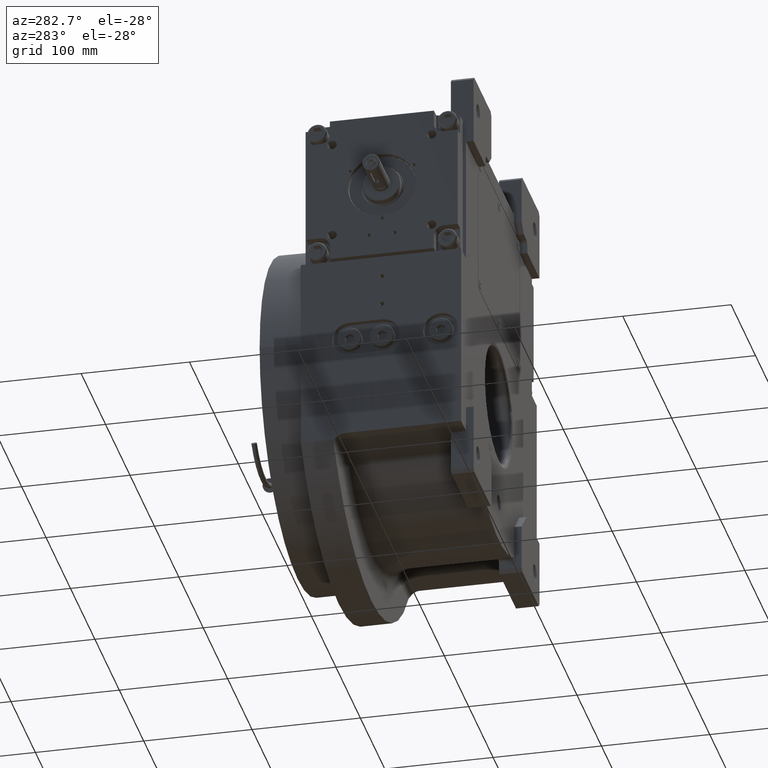
[diagram: clean part render]
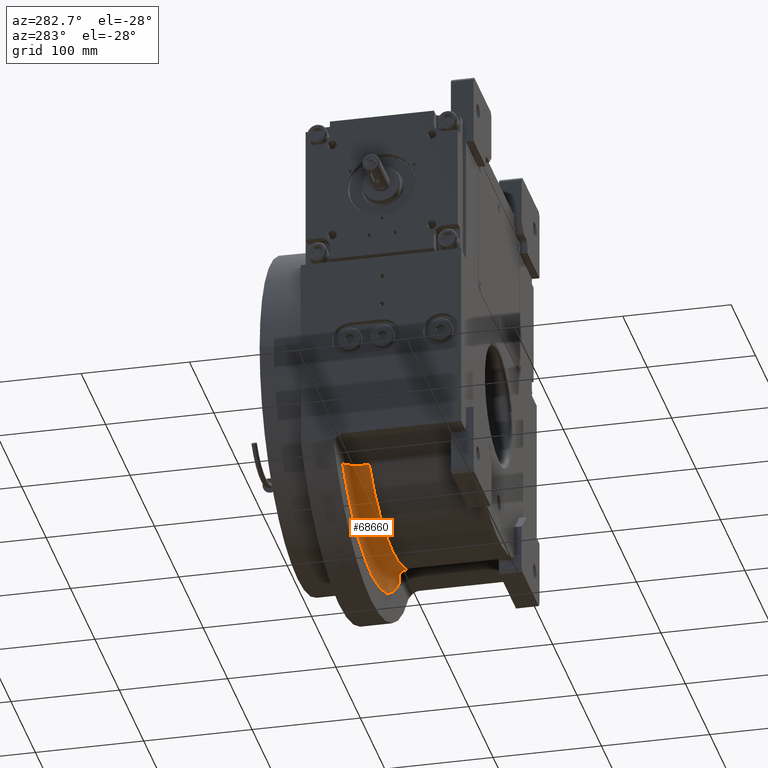
[diagram: same view with one face highlighted and labeled with its STEP entity id]
A machine part, auxiliary view. The second image highlights one B-rep face of the part: STEP entity #68660.
In plain terms, the highlighted toroidal blend (fillet) surface has major radius 158 mm and minor (blend) radius 20 mm.
Its self-contained STEP definition (entity closure, byte-faithful):
#288 = CARTESIAN_POINT ( 'NONE',  ( -111.3923422199803639, 44.22351198310433773, -104.1132547796615171 ) ) ;
#2426 = CARTESIAN_POINT ( 'NONE',  ( -97.69402759877473841, 32.17824278475688260, -99.34394788754170236 ) ) ;
#2771 = CARTESIAN_POINT ( 'NONE',  ( 102.3983983773695172, 39.13454416598305130, -101.0305906898127120 ) ) ;
#2781 = CARTESIAN_POINT ( 'NONE',  ( -97.91255337353909738, 32.70133367099210631, -99.42366482389860494 ) ) ;
#3117 = CARTESIAN_POINT ( 'NONE',  ( -102.7000760039274923, 39.41809226182505910, -101.1376651757015992 ) ) ;
#3453 = CARTESIAN_POINT ( 'NONE',  ( 97.74688043386996128, 32.31025036503177006, -99.36423024539772086 ) ) ;
#3813 = CARTESIAN_POINT ( 'NONE',  ( -97.38739292718010176, 31.36510134331906130, -99.23164404730367494 ) ) ;
#4142 = CARTESIAN_POINT ( 'NONE',  ( 96.30723760260589472, 24.99999990761120117, -98.83797943607669367 ) ) ;
#5174 = CARTESIAN_POINT ( 'NONE',  ( 109.4247943805015808, 43.57593919126923510, -103.4542186149024303 ) ) ;
#5185 = CARTESIAN_POINT ( 'NONE',  ( -113.1631049617858622, 44.62956057005464316, -104.6995521603640498 ) ) ;
#6148 = VERTEX_POINT ( 'NONE', #14197 ) ;
#6250 = CARTESIAN_POINT ( 'NONE',  ( 101.7963591369399978, 45.00000000000000000, -121.4958819722340024 ) ) ;
#8032 = CARTESIAN_POINT ( 'NONE',  ( 98.48471084682699939, 33.97079976953421721, -99.63148764706355109 ) ) ;
#8395 = CARTESIAN_POINT ( 'NONE',  ( 102.7499884497114238, 39.46404896067710411, -101.1546350695295473 ) ) ;
#8406 = CARTESIAN_POINT ( 'NONE',  ( -99.18958940278133696, 35.23783606590234285, -99.88545211301371296 ) ) ;
#8739 = CARTESIAN_POINT ( 'NONE',  ( 97.97117223922006701, 32.83484338586081464, -99.44526033932362452 ) ) ;
#9075 = CARTESIAN_POINT ( 'NONE',  ( 97.90664548853494864, 32.68827471051651656, -99.42190602882016037 ) ) ;
#9086 = CARTESIAN_POINT ( 'NONE',  ( -97.79214034478044937, 32.42049839196046435, -99.37979107747185026 ) ) ;
#9439 = CARTESIAN_POINT ( 'NONE',  ( -116.7646410946360049, 44.99998530194281443, -105.8709790865936355 ) ) ;
#10132 = CARTESIAN_POINT ( 'NONE',  ( -2.057655180072804513E-28, 25.00000000000000000, 0.000000000000000000 ) ) ;
#10460 = CARTESIAN_POINT ( 'NONE',  ( 111.1261820987919577, 44.16061954937864442, -104.0245863794300476 ) ) ;
#10469 = CARTESIAN_POINT ( 'NONE',  ( -109.4371449076648020, 43.58039139906387760, -103.4586012990809252 ) ) ;
#10829 = CARTESIAN_POINT ( 'NONE',  ( 107.9131611571321798, 42.93445073039974602, -102.9430406042122996 ) ) ;
#10837 = CARTESIAN_POINT ( 'NONE',  ( -114.9267522836661755, 44.89477428892062960, -105.2774722197928270 ) ) ;
#11589 = ORIENTED_EDGE ( 'NONE', *, *, #48377, .T. ) ;
#13675 = CARTESIAN_POINT ( 'NONE',  ( 98.03505203622908937, 32.97731647600386395, -99.46841138892769152 ) ) ;
#14035 = CARTESIAN_POINT ( 'NONE',  ( 97.48234618482011626, 31.63550269026396577, -99.26904948111314297 ) ) ;
#14197 = CARTESIAN_POINT ( 'NONE',  ( -96.30722393658518854, 24.99999992571344976, -98.83796549704690904 ) ) ;
#14712 = CARTESIAN_POINT ( 'NONE',  ( 102.7545780126843340, 39.46825219890278191, -101.1562525515439432 ) ) ;
#15407 = CARTESIAN_POINT ( 'NONE',  ( -103.5604638868912701, 40.20595371232317206, -101.4407642183008420 ) ) ;
#15410 = CARTESIAN_POINT ( 'NONE',  ( -4.611055492802900184E-05, 45.00000000000000000, -158.5100177325210211 ) ) ;
#15752 = CARTESIAN_POINT ( 'NONE',  ( -108.8488826586078488, 43.34740058216166858, -103.2598516227548657 ) ) ;
#16103 = CARTESIAN_POINT ( 'NONE',  ( -109.4752336681219163, 43.59488064486146897, -103.4714376798484778 ) ) ;
#18937 = CARTESIAN_POINT ( 'NONE',  ( 97.67883289305895289, 32.14176207053703394, -99.33972559280917380 ) ) ;
#18946 = CARTESIAN_POINT ( 'NONE',  ( -102.6416497146342408, 39.36405972610243964, -101.1170677917055087 ) ) ;
#19280 = CARTESIAN_POINT ( 'NONE',  ( 100.2350872385880791, 36.71107100005902879, -100.2633408774202195 ) ) ;
#19628 = CARTESIAN_POINT ( 'NONE',  ( 96.42904774952934588, 27.58533141082950735, -98.88715296331103843 ) ) ;
#19638 = CARTESIAN_POINT ( 'NONE',  ( -101.7297215537501955, 38.46499574230020357, -100.7942339710923818 ) ) ;
#19968 = CARTESIAN_POINT ( 'NONE',  ( 97.85275650508563672, 32.56236914450305875, -99.40243881657917768 ) ) ;
#20658 = CARTESIAN_POINT ( 'NONE',  ( -109.9185748977876074, 43.76307598258188847, -103.6208235213127153 ) ) ;
#21001 = CARTESIAN_POINT ( 'NONE',  ( 107.5527563214296549, 42.75924596825704072, -102.8205401285183029 ) ) ;
#21010 = CARTESIAN_POINT ( 'NONE',  ( -109.4712663826515495, 43.59337483259150048, -103.4701008455638771 ) ) ;
#21692 = CARTESIAN_POINT ( 'NONE',  ( 110.3220350555751281, 43.91652627139864506, -103.7565656085486836 ) ) ;
#22067 = CARTESIAN_POINT ( 'NONE',  ( -43.59914018231270205, 45.00000000000000000, -152.4009961974019802 ) ) ;
#23406 = CARTESIAN_POINT ( 'NONE',  ( -1.421085471520200056E-14, 25.00000000000330047, 8.526512829121199706E-14 ) ) ;
#23857 = CARTESIAN_POINT ( 'NONE',  ( -101.4886153696198647, 38.20591153641694859, -100.7084430121944365 ) ) ;
#24198 = CARTESIAN_POINT ( 'NONE',  ( 102.5048850568784786, 39.23635417113926138, -101.0681975133973225 ) ) ;
#24207 = CARTESIAN_POINT ( 'NONE',  ( -100.7926875676756566, 37.41839457156896742, -100.4603088552798908 ) ) ;
#24893 = CARTESIAN_POINT ( 'NONE',  ( -98.54806655395772452, 34.10925224219861462, -99.65458556124448819 ) ) ;
#25233 = CARTESIAN_POINT ( 'NONE',  ( 98.02735946511637621, 32.96029053751003346, -99.46562191245601525 ) ) ;
#25580 = CARTESIAN_POINT ( 'NONE',  ( -109.4570425004065584, 43.58796948114684966, -103.4653075323048057 ) ) ;
#25918 = CARTESIAN_POINT ( 'NONE',  ( -113.2388050366955667, 44.64354608652779177, -104.7244472051020097 ) ) ;
#26265 = CARTESIAN_POINT ( 'NONE',  ( -106.1807118417980007, 42.01955951595629557, -102.3474989434262028 ) ) ;
#26624 = CARTESIAN_POINT ( 'NONE',  ( -108.5878809751568355, 43.23598813457415702, -103.1712700995225731 ) ) ;
#26970 = DIRECTION ( 'NONE',  ( -0.7986875995212583401, 0.000000000000000000, -0.6017458918604845497 ) ) ;
#28881 = B_SPLINE_CURVE_WITH_KNOTS ( 'NONE', 3,
 ( #40019, #51266, #30504, #40703, #29464, #3813, #50920, #2426, #9086, #2781, #55868, #29822, #62162, #34395, #61819, #24893, #8406, #46330, #24207, #23857, #19638, #45625, #56569, #62511, #18946, #3117, #35770, #57255, #68109, #63880, #15407, #43132, #26265, #31183, #36796, #68447, #26624, #15752, #63543, #37146, #58619, #10469, #25580, #42429, #21010, #16103, #20658, #36464, #288, #31867, #37503, #53350, #52986, #42093, #69145, #5185, #58273, #47716, #25918, #48062, #10837, #30846, #9439, #63369 ),
 .UNSPECIFIED., .F., .F.,
 ( 4, 2, 2, 2, 1, 1, 1, 1, 2, 2, 2, 2, 2, 1, 1, 1, 1, 1, 2, 2, 2, 2, 2, 1, 1, 1, 1, 1, 1, 2, 2, 2, 2, 2, 1, 1, 1, 2, 2, 2, 4 ),
 ( 0.000000000000000000, 0.1250000000000111300, 0.1875000000000168754, 0.2187500000000195677, 0.2343750000000205391, 0.2421875000000207612, 0.2460937500000210110, 0.2480468750000210110, 0.2490234375000210942, 0.2500000000000211497, 0.3750000000000347500, 0.4375000000000414113, 0.4687500000000452416, 0.4843750000000466294, 0.4921875000000472955, 0.4960937500000481282, 0.4980468750000489053, 0.4990234375000496825, 0.4995117187500495715, 0.5000000000000494049, 0.6250000000001078027, 0.6875000000001370015, 0.7187500000001518785, 0.7343750000001594280, 0.7421875000001629807, 0.7460937500001643130, 0.7480468750001647571, 0.7490234375001647571, 0.7495117187501649791, 0.7497558593751655343, 0.7500000000001662004, 0.8125000000001361133, 0.8437500000001215694, 0.8593750000001149081, 0.8671875000001115774, 0.8710937500001101341, 0.8730468750001093570, 0.8740234375001090239, 0.8750000000001086908, 0.9375000000000544009, 1.000000000000000000 ),
 .UNSPECIFIED. ) ;
#29464 = CARTESIAN_POINT ( 'NONE',  ( -97.06297459206342637, 30.37875981429069938, -99.11244784926033446 ) ) ;
#29815 = CARTESIAN_POINT ( 'NONE',  ( 102.7579227797914854, 39.47131357591320011, -101.1574313033593882 ) ) ;
#29822 = CARTESIAN_POINT ( 'NONE',  ( -98.00546406152352574, 32.91113758827333413, -99.45746077517848960 ) ) ;
#30504 = CARTESIAN_POINT ( 'NONE',  ( -96.45153004134235175, 27.70310141048831198, -98.88764133614009211 ) ) ;
#30672 = CIRCLE ( 'NONE', #35202, 138.0000000000000853 ) ;
#30846 = CARTESIAN_POINT ( 'NONE',  ( -116.2352257174750463, 44.99001509439585789, -105.7012472922178006 ) ) ;
#31174 = CARTESIAN_POINT ( 'NONE',  ( 112.6337903164633758, 44.53780329086850287, -104.5239396644698502 ) ) ;
#31183 = CARTESIAN_POINT ( 'NONE',  ( -106.7795100371588859, 42.36370184623466884, -102.5536834389168064 ) ) ;
#31858 = CARTESIAN_POINT ( 'NONE',  ( 115.2789584378532908, 44.95770843063282030, -105.3909224794406327 ) ) ;
#31867 = CARTESIAN_POINT ( 'NONE',  ( -111.7301272109056498, 44.31438120929762192, -104.2256781774488275 ) ) ;
#32249 = TOROIDAL_SURFACE ( 'NONE', #38985, 158.0000000000000000, 20.00000000000000000 ) ;
#32588 = CARTESIAN_POINT ( 'NONE',  ( -101.7965497933509909, 45.00000000000000000, -121.4959109195396110 ) ) ;
#33994 = EDGE_CURVE ( 'NONE', #6148, #47500, #30672, .T. ) ;
#34395 = CARTESIAN_POINT ( 'NONE',  ( -98.02791288108049628, 32.96098501412838999, -99.46561891031363700 ) ) ;
#35073 = CARTESIAN_POINT ( 'NONE',  ( 102.0508725851416756, 38.79353669661188064, -100.9077352945622579 ) ) ;
#35202 = AXIS2_PLACEMENT_3D ( 'NONE', #23406, #44824, #39552 ) ;
#35427 = CARTESIAN_POINT ( 'NONE',  ( 101.3949774993228203, 38.10441288670152460, -100.6755621131664640 ) ) ;
#35763 = CARTESIAN_POINT ( 'NONE',  ( 98.00384888286747298, 32.90804153405046151, -99.45709908681564571 ) ) ;
#35770 = CARTESIAN_POINT ( 'NONE',  ( -102.7293842753246480, 39.44505987403460523, -101.1479936078508217 ) ) ;
#36099 = CARTESIAN_POINT ( 'NONE',  ( 103.3977546460237562, 40.05675034197459183, -101.3829155952155929 ) ) ;
#36454 = CARTESIAN_POINT ( 'NONE',  ( 116.3458202215898751, 45.00009952038519856, -105.7365312948304279 ) ) ;
#36464 = CARTESIAN_POINT ( 'NONE',  ( -110.4507057160706438, 43.94872069333644049, -103.7991858523617452 ) ) ;
#36796 = CARTESIAN_POINT ( 'NONE',  ( -107.7423295384170245, 42.85102449398583957, -102.8832939820001116 ) ) ;
#37146 = CARTESIAN_POINT ( 'NONE',  ( -109.3181507463841768, 43.53466286722584755, -103.4184730461046655 ) ) ;
#37150 = CARTESIAN_POINT ( 'NONE',  ( -21.98885812455705135, 45.00000000000000000, -156.9786534940434990 ) ) ;
#37503 = CARTESIAN_POINT ( 'NONE',  ( -112.2734746109593260, 44.44468254698182363, -104.4058678920740988 ) ) ;
#37507 = CARTESIAN_POINT ( 'NONE',  ( 64.41571053208309650, 45.00000000000000000, -144.8384350625149750 ) ) ;
#37857 = CARTESIAN_POINT ( 'NONE',  ( 43.59869364544065462, 45.00000000000000000, -152.4011103777230005 ) ) ;
#38985 = AXIS2_PLACEMENT_3D ( 'NONE', #10132, #43488, #26970 ) ;
#39552 = DIRECTION ( 'NONE',  ( -0.6978784504689377055, -1.201735973212917754E-14, -0.7162162162162165613 ) ) ;
#40019 = CARTESIAN_POINT ( 'NONE',  ( -96.30722393658518854, 24.99999992571344976, -98.83796549704690904 ) ) ;
#40703 = CARTESIAN_POINT ( 'NONE',  ( -96.88299641673512497, 29.71310565171039997, -99.04611361363333799 ) ) ;
#41386 = CARTESIAN_POINT ( 'NONE',  ( 102.7270658436678303, 39.44302597977765146, -101.1465560309166420 ) ) ;
#41720 = CARTESIAN_POINT ( 'NONE',  ( 97.36157097504504065, 31.29695299417163667, -99.22571455668132501 ) ) ;
#42093 = CARTESIAN_POINT ( 'NONE',  ( -112.8981352970310326, 44.57872936801063446, -104.6123043516303426 ) ) ;
#42097 = CARTESIAN_POINT ( 'NONE',  ( 21.98865651185845138, 45.00000000000000000, -156.9786712556644943 ) ) ;
#42306 = EDGE_CURVE ( 'NONE', #6148, #57552, #28881, .T. ) ;
#42429 = CARTESIAN_POINT ( 'NONE',  ( -109.4655760309758534, 43.59121322662022635, -103.4681832982696505 ) ) ;
#42433 = CARTESIAN_POINT ( 'NONE',  ( 83.96432363714549751, 45.00000000000000000, -134.4519182908271944 ) ) ;
#42781 = CARTESIAN_POINT ( 'NONE',  ( 117.1665481270144085, 45.00000000000000000, -106.0000000000000000 ) ) ;
#43132 = CARTESIAN_POINT ( 'NONE',  ( -104.5087876018555448, 40.95577502017587790, -101.7701399989986726 ) ) ;
#43136 = CARTESIAN_POINT ( 'NONE',  ( -112.2729284226672064, 45.00000000000000000, -111.4014722087630105 ) ) ;
#43487 = CARTESIAN_POINT ( 'NONE',  ( 112.2734842588863842, 45.00000000000000000, -111.4014792453958052 ) ) ;
#43488 = DIRECTION ( 'NONE',  ( 0.000000000000000000, -1.000000000000000000, 0.000000000000000000 ) ) ;
#44824 = DIRECTION ( 'NONE',  ( -6.789570679155330615E-15, -1.000000000000000000, 2.340198913247644897E-14 ) ) ;
#45625 = CARTESIAN_POINT ( 'NONE',  ( -102.1052124814145685, 38.84748452432424415, -100.9274324292788094 ) ) ;
#45966 = CARTESIAN_POINT ( 'NONE',  ( 104.2463131879213307, 40.76393802617366191, -101.6826970027681085 ) ) ;
#46321 = CARTESIAN_POINT ( 'NONE',  ( 101.6495231024777866, 38.38138673485482855, -100.7657376625949581 ) ) ;
#46330 = CARTESIAN_POINT ( 'NONE',  ( -100.3652794098986902, 36.87972709017024897, -100.3072398612967220 ) ) ;
#46678 = CARTESIAN_POINT ( 'NONE',  ( 100.6690459606547705, 37.27067431726949565, -100.4179235864729520 ) ) ;
#47164 = EDGE_CURVE ( 'NONE', #47500, #56610, #51978, .T. ) ;
#47351 = CARTESIAN_POINT ( 'NONE',  ( 108.7699844828208597, 43.31492083898538681, -103.2332460237712013 ) ) ;
#47500 = VERTEX_POINT ( 'NONE', #62764 ) ;
#47716 = CARTESIAN_POINT ( 'NONE',  ( -113.2270883732561799, 44.64139532762662554, -104.7205948346391580 ) ) ;
#48031 = CARTESIAN_POINT ( 'NONE',  ( 117.1665481270144085, 45.00000000000000000, -106.0000000000000000 ) ) ;
#48062 = CARTESIAN_POINT ( 'NONE',  ( -114.1474023438828596, 44.80939919492819001, -105.0231329103317108 ) ) ;
#48065 = CARTESIAN_POINT ( 'NONE',  ( -117.1660380023439956, 45.00001431931600138, -105.9999239592122109 ) ) ;
#48377 = EDGE_CURVE ( 'NONE', #57552, #56610, #48482, .T. ) ;
#48482 = B_SPLINE_CURVE_WITH_KNOTS ( 'NONE', 3,
 ( #48065, #43136, #32588, #59690, #57927, #22067, #37150, #15410, #42097, #37857, #37507, #42433, #6250, #43487, #42781 ),
 .UNSPECIFIED., .F., .F.,
 ( 4, 1, 1, 1, 1, 1, 1, 1, 1, 1, 1, 1, 4 ),
 ( 0.000000000000000000, 0.08230548578115680358, 0.1657096187028465062, 0.2495666647837894991, 0.3333347921405555025, 0.4167731287220570180, 0.4999985279742490407, 0.5832235921521119471, 0.6666606947103590475, 0.7504274457011980148, 0.8342845243559869894, 0.9176906032219021014, 1.000000000000000000 ),
 .UNSPECIFIED. ) ;
#48768 = CARTESIAN_POINT ( 'NONE',  ( 117.1665481270144085, 45.00000000000000000, -106.0000000000000000 ) ) ;
#49625 = ORIENTED_EDGE ( 'NONE', *, *, #33994, .F. ) ;
#50908 = CARTESIAN_POINT ( 'NONE',  ( 99.07132607232249200, 35.05063944442410673, -99.84668655224699307 ) ) ;
#50920 = CARTESIAN_POINT ( 'NONE',  ( -97.50460443159397528, 31.69185725558088507, -99.27465210942251872 ) ) ;
#51266 = CARTESIAN_POINT ( 'NONE',  ( -96.30868053554550556, 26.34585515008642886, -98.83642070424104986 ) ) ;
#51278 = ORIENTED_EDGE ( 'NONE', *, *, #42306, .T. ) ;
#51604 = CARTESIAN_POINT ( 'NONE',  ( 96.30961973117844366, 26.25722250582394679, -98.83759602172548853 ) ) ;
#51955 = CARTESIAN_POINT ( 'NONE',  ( 97.02992846564075080, 30.28103333706581068, -99.10657987401545199 ) ) ;
#51978 = B_SPLINE_CURVE_WITH_KNOTS ( 'NONE', 3,
 ( #4142, #51604, #19628, #57247, #51955, #41720, #14035, #18937, #3453, #19968, #9075, #8739, #35763, #57587, #25233, #63181, #13675, #8032, #50908, #19280, #46678, #35427, #46321, #35073, #68099, #2771, #24198, #56902, #56558, #41386, #62841, #8395, #14712, #29815, #36099, #45966, #54042, #52977, #21001, #10829, #58606, #47351, #64232, #58972, #57934, #5174, #21692, #10460, #31174, #53691, #31858, #36454, #48768 ),
 .UNSPECIFIED., .F., .F.,
 ( 4, 2, 2, 2, 2, 1, 1, 1, 1, 2, 2, 2, 2, 2, 2, 1, 1, 1, 1, 1, 2, 2, 2, 2, 2, 1, 1, 2, 2, 2, 2, 4 ),
 ( 0.000000000000000000, 0.1249999999998392397, 0.1874999999997588596, 0.2187499999997192801, 0.2343749999996997124, 0.2421874999996898037, 0.2460937499996850297, 0.2480468749996828648, 0.2490234374996819489, 0.2495117187496817546, 0.2499999999996815325, 0.3749999999995941025, 0.4374999999995501376, 0.4687499999995277111, 0.4843749999995164979, 0.4921874999995102251, 0.4960937499995068944, 0.4980468749995055622, 0.4990234374995043964, 0.4995117187495035638, 0.4997558593745026756, 0.4999999999995017319, 0.6249999999996301847, 0.6874999999996945776, 0.7187499999997267741, 0.7343749999997423172, 0.7421874999997500888, 0.7460937499997538636, 0.7499999999997576383, 0.8124999999998182565, 0.8749999999998788747, 1.000000000000000000 ),
 .UNSPECIFIED. ) ;
#52977 = CARTESIAN_POINT ( 'NONE',  ( 106.5230779561971985, 42.22457348863358106, -102.4693920495566175 ) ) ;
#52986 = CARTESIAN_POINT ( 'NONE',  ( -112.7507830709306091, 44.54855493280744128, -104.5636799672140143 ) ) ;
#53350 = CARTESIAN_POINT ( 'NONE',  ( -112.4607002535011873, 44.48710846717178669, -104.4678539401486432 ) ) ;
#53691 = CARTESIAN_POINT ( 'NONE',  ( 113.3373850614359384, 44.67107231412343538, -104.7552860952817042 ) ) ;
#54042 = CARTESIAN_POINT ( 'NONE',  ( 105.9055068370100230, 41.85610961708399458, -102.2571069029231410 ) ) ;
#54166 = EDGE_LOOP ( 'NONE', ( #49625, #51278, #11589, #56898 ) ) ;
#54212 = CARTESIAN_POINT ( 'NONE',  ( -117.1660380023439956, 45.00001431931600138, -105.9999239592122109 ) ) ;
#55868 = CARTESIAN_POINT ( 'NONE',  ( -97.97424618332217960, 32.84128268383337712, -99.44611099143347133 ) ) ;
#56558 = CARTESIAN_POINT ( 'NONE',  ( 102.6950527371998163, 39.41357277141199233, -101.1352714509385038 ) ) ;
#56569 = CARTESIAN_POINT ( 'NONE',  ( -102.2964152114121248, 39.03719391014137585, -100.9951587366911241 ) ) ;
#56610 = VERTEX_POINT ( 'NONE', #48031 ) ;
#56898 = ORIENTED_EDGE ( 'NONE', *, *, #47164, .F. ) ;
#56902 = CARTESIAN_POINT ( 'NONE',  ( 102.6312996237867168, 39.35459407148432831, -101.1127928936633111 ) ) ;
#57247 = CARTESIAN_POINT ( 'NONE',  ( 96.84980827649697233, 29.60359732435895452, -99.04162677069164999 ) ) ;
#57255 = CARTESIAN_POINT ( 'NONE',  ( -102.7419653505997275, 39.45660694743568797, -101.1524264426147681 ) ) ;
#57552 = VERTEX_POINT ( 'NONE', #54212 ) ;
#57587 = CARTESIAN_POINT ( 'NONE',  ( 98.02029075397882707, 32.94461909195858595, -99.46305897812415253 ) ) ;
#57927 = CARTESIAN_POINT ( 'NONE',  ( -64.41635450183450473, 45.00000000000000000, -144.8381713325094324 ) ) ;
#57934 = CARTESIAN_POINT ( 'NONE',  ( 109.3745464157829872, 43.55663680806992488, -103.4372806364187625 ) ) ;
#58273 = CARTESIAN_POINT ( 'NONE',  ( -113.2014659484088526, 44.63667040653874096, -104.7121690570024697 ) ) ;
#58606 = CARTESIAN_POINT ( 'NONE',  ( 108.4800013347112042, 43.18941542812900281, -103.1351226245848949 ) ) ;
#58619 = CARTESIAN_POINT ( 'NONE',  ( -109.3974056362629312, 43.56519796802493971, -103.4452044021865618 ) ) ;
#58972 = CARTESIAN_POINT ( 'NONE',  ( 109.2723530990759429, 43.51694133331180581, -103.4028213162863494 ) ) ;
#59690 = CARTESIAN_POINT ( 'NONE',  ( -83.96482471285699489, 45.00000000000000000, -134.4515343287771998 ) ) ;
#61819 = CARTESIAN_POINT ( 'NONE',  ( -98.03293628953102257, 32.97209666675917106, -99.46744407336238680 ) ) ;
#62162 = CARTESIAN_POINT ( 'NONE',  ( -98.01892274206869615, 32.94104951340082010, -99.46235204995994650 ) ) ;
#62511 = CARTESIAN_POINT ( 'NONE',  ( -102.5255579008334479, 39.25560902335374891, -101.0761116096675352 ) ) ;
#62764 = CARTESIAN_POINT ( 'NONE',  ( 96.30723760260589472, 24.99999990761120117, -98.83797943607669367 ) ) ;
#62841 = CARTESIAN_POINT ( 'NONE',  ( 102.7431065449346335, 39.45774344501223396, -101.1522096567761935 ) ) ;
#63181 = CARTESIAN_POINT ( 'NONE',  ( 98.03207687276184856, 32.97073713156943597, -99.46733246904339865 ) ) ;
#63369 = CARTESIAN_POINT ( 'NONE',  ( -117.1660380023439956, 45.00001431931600138, -105.9999239592122109 ) ) ;
#63543 = CARTESIAN_POINT ( 'NONE',  ( -109.1605355308136609, 43.47300632657120900, -103.3652613385540207 ) ) ;
#63880 = CARTESIAN_POINT ( 'NONE',  ( -102.7556243044858064, 39.46912785005818591, -101.1572386221299240 ) ) ;
#64232 = CARTESIAN_POINT ( 'NONE',  ( 109.1198961715385565, 43.45704474481149759, -103.3513959743997361 ) ) ;
#64250 = FACE_OUTER_BOUND ( 'NONE', #54166, .T. ) ;
#68099 = CARTESIAN_POINT ( 'NONE',  ( 102.1879067513015258, 38.93036966924995568, -100.9561944668075455 ) ) ;
#68109 = CARTESIAN_POINT ( 'NONE',  ( -102.7503572650319370, 39.46430266327028846, -101.1553830789643200 ) ) ;
#68447 = CARTESIAN_POINT ( 'NONE',  ( -108.0740276487307767, 43.00863225675112034, -102.9965373334888028 ) ) ;
#68660 = ADVANCED_FACE ( 'NONE', ( #64250 ), #32249, .F. ) ;
#69145 = CARTESIAN_POINT ( 'NONE',  ( -113.0741043758506521, 44.61281630514807972, -104.6702653786944808 ) ) ;